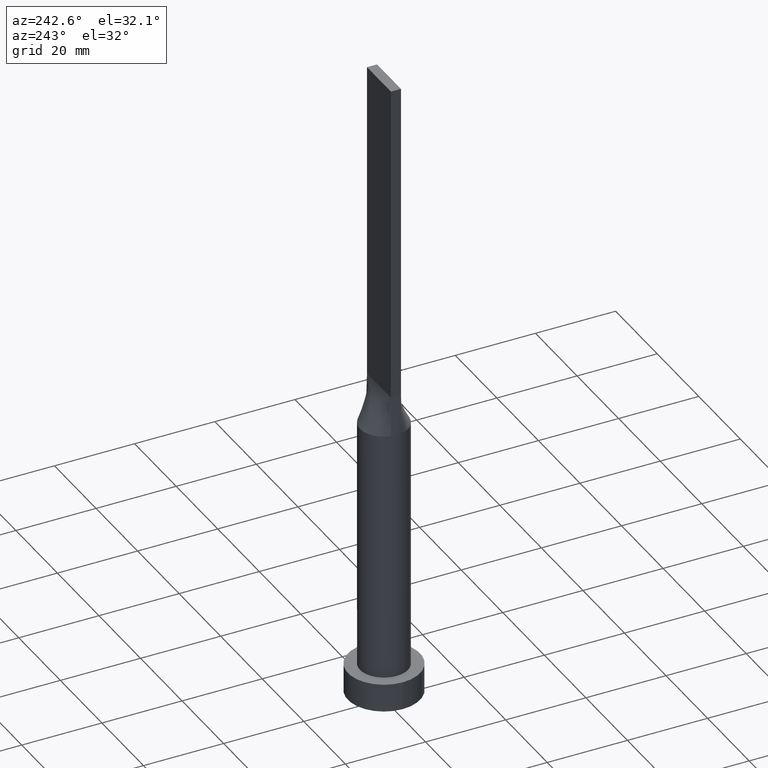
[diagram: clean part render]
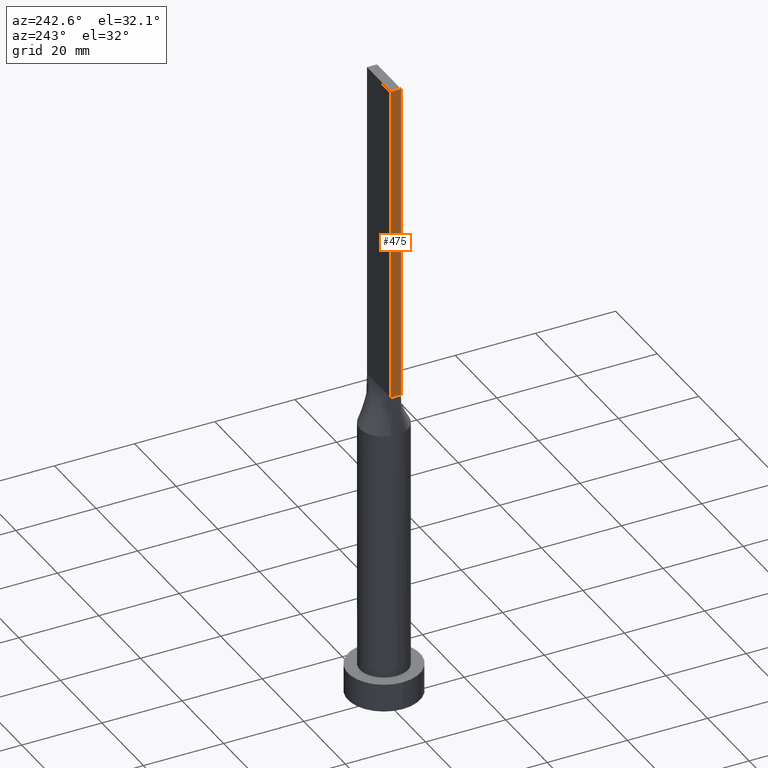
[diagram: same view with one face highlighted and labeled with its STEP entity id]
A machine part, auxiliary view. The second image highlights one B-rep face of the part: STEP entity #475.
In plain terms, the highlighted planar face has unit normal (1, 0, -0).
Its self-contained STEP definition (entity closure, byte-faithful):
#10 = DIRECTION ( 'NONE',  ( 0.000000000000000000, -1.000000000000000000, 0.000000000000000000 ) ) ;
#36 = VECTOR ( 'NONE', #10, 1000.000000000000000 ) ;
#44 = ORIENTED_EDGE ( 'NONE', *, *, #118, .T. ) ;
#49 = LINE ( 'NONE', #354, #101 ) ;
#74 = ORIENTED_EDGE ( 'NONE', *, *, #308, .F. ) ;
#76 = DIRECTION ( 'NONE',  ( 0.000000000000000000, -1.000000000000000000, 0.000000000000000000 ) ) ;
#82 = CARTESIAN_POINT ( 'NONE',  ( -5.750000000000000000, 1.250000000000000222, 160.0000000000000000 ) ) ;
#101 = VECTOR ( 'NONE', #552, 1000.000000000000000 ) ;
#118 = EDGE_CURVE ( 'NONE', #479, #597, #204, .T. ) ;
#163 = VECTOR ( 'NONE', #76, 1000.000000000000000 ) ;
#177 = EDGE_LOOP ( 'NONE', ( #44, #315, #74, #250 ) ) ;
#202 = LINE ( 'NONE', #537, #36 ) ;
#204 = LINE ( 'NONE', #303, #163 ) ;
#246 = EDGE_CURVE ( 'NONE', #340, #597, #49, .T. ) ;
#250 = ORIENTED_EDGE ( 'NONE', *, *, #601, .T. ) ;
#264 = FACE_OUTER_BOUND ( 'NONE', #177, .T. ) ;
#291 = VECTOR ( 'NONE', #586, 1000.000000000000000 ) ;
#303 = CARTESIAN_POINT ( 'NONE',  ( -5.750000000000000000, 1.250000000000000222, 80.00000000000000000 ) ) ;
#308 = EDGE_CURVE ( 'NONE', #313, #340, #202, .T. ) ;
#313 = VERTEX_POINT ( 'NONE', #528 ) ;
#315 = ORIENTED_EDGE ( 'NONE', *, *, #246, .F. ) ;
#340 = VERTEX_POINT ( 'NONE', #383 ) ;
#345 = DIRECTION ( 'NONE',  ( 1.000000000000000000, 0.000000000000000000, -0.000000000000000000 ) ) ;
#349 = CARTESIAN_POINT ( 'NONE',  ( -5.750000000000000000, -1.249999999999999112, 80.00000000000000000 ) ) ;
#354 = CARTESIAN_POINT ( 'NONE',  ( -5.750000000000000000, -1.249999999999999112, 160.0000000000000000 ) ) ;
#383 = CARTESIAN_POINT ( 'NONE',  ( -5.750000000000000000, -1.249999999999999112, 160.0000000000000000 ) ) ;
#388 = PLANE ( 'NONE',  #568 ) ;
#391 = CARTESIAN_POINT ( 'NONE',  ( -5.750000000000000000, 1.250000000000000222, 160.0000000000000000 ) ) ;
#399 = CARTESIAN_POINT ( 'NONE',  ( -5.750000000000000000, 1.250000000000000222, 80.00000000000000000 ) ) ;
#475 = ADVANCED_FACE ( 'NONE', ( #264 ), #388, .F. ) ;
#479 = VERTEX_POINT ( 'NONE', #399 ) ;
#502 = DIRECTION ( 'NONE',  ( -0.000000000000000000, 0.000000000000000000, -1.000000000000000000 ) ) ;
#506 = LINE ( 'NONE', #391, #291 ) ;
#528 = CARTESIAN_POINT ( 'NONE',  ( -5.750000000000000000, 1.250000000000000222, 160.0000000000000000 ) ) ;
#537 = CARTESIAN_POINT ( 'NONE',  ( -5.750000000000000000, 1.250000000000000222, 160.0000000000000000 ) ) ;
#552 = DIRECTION ( 'NONE',  ( -0.000000000000000000, -0.000000000000000000, -1.000000000000000000 ) ) ;
#568 = AXIS2_PLACEMENT_3D ( 'NONE', #82, #345, #502 ) ;
#586 = DIRECTION ( 'NONE',  ( -0.000000000000000000, -0.000000000000000000, -1.000000000000000000 ) ) ;
#597 = VERTEX_POINT ( 'NONE', #349 ) ;
#601 = EDGE_CURVE ( 'NONE', #313, #479, #506, .T. ) ;